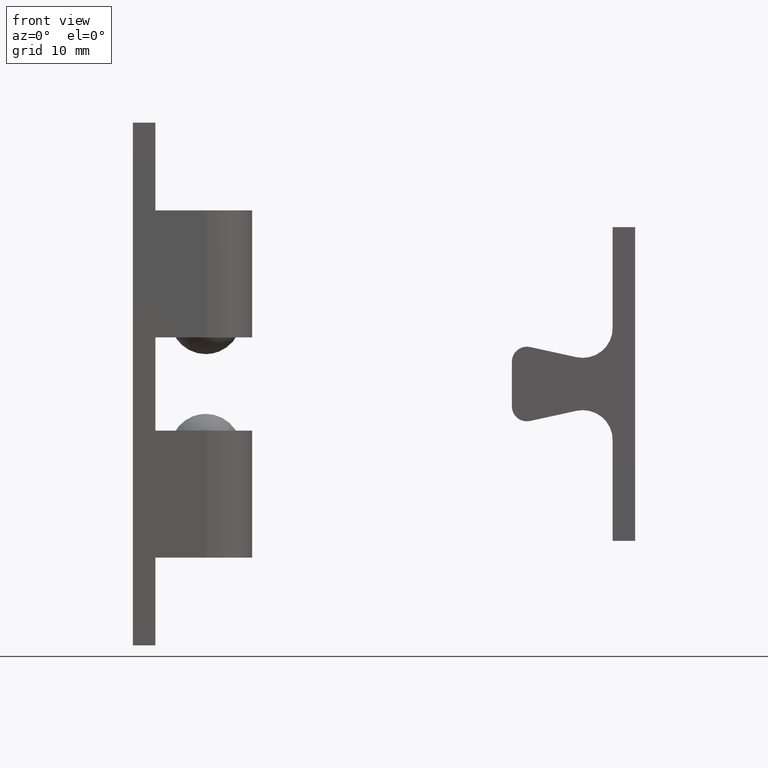
[diagram: clean part render]
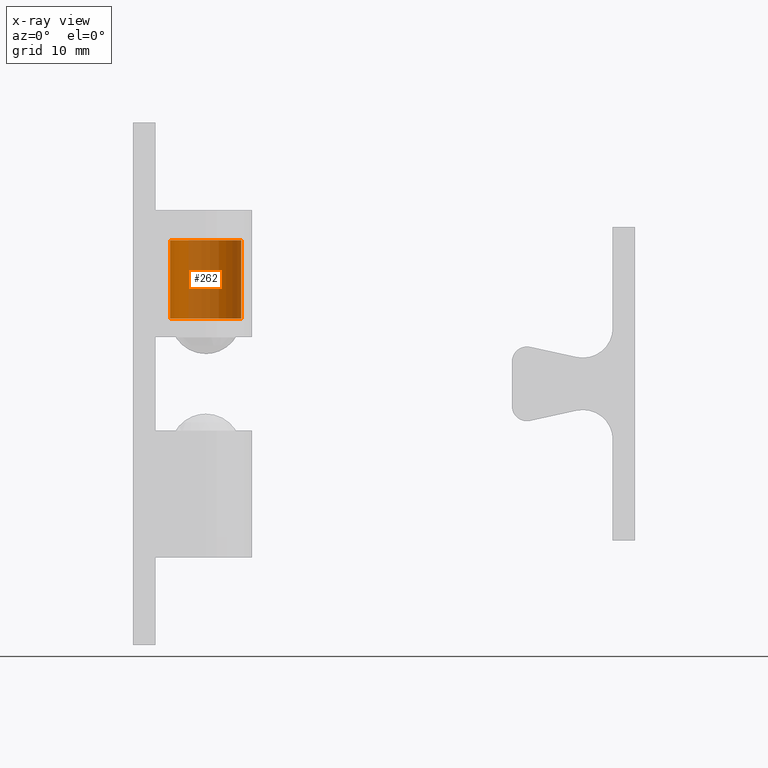
[diagram: x-ray — body ghosted, one internal face saturated and labeled with its STEP entity id]
A machine part, front view, then the same camera in x-ray: the body is ghosted and one INTERNAL B-rep face — a face not visible from any outside direction — is saturated and labeled: STEP entity #262.
In plain terms, the highlighted cylindrical surface (edge-blend (fillet) strip) has radius 4.7625 mm, axis along (0, 0, 1).
Its self-contained STEP definition (entity closure, byte-faithful):
#262=ADVANCED_FACE('',(#871),#870,.F.);
#870=CYLINDRICAL_SURFACE('',#1385,4.76250000000E+00);
#871=FACE_OUTER_BOUND('',#1386,.T.);
#1382=CARTESIAN_POINT('',(9.75000000000E+00,0.00000000000E+00,0.00000000000E+00));
#1383=DIRECTION('',(-0.00000000000E+00,-0.00000000000E+00,1.00000000000E+00));
#1384=DIRECTION('',(1.00000000000E+00,-0.00000000000E+00,-0.00000000000E+00));
#1385=AXIS2_PLACEMENT_3D('',#1382,#1383,#1384);
#1386=EDGE_LOOP('',(#1756,#1757,#1758,#1759));
#1756=ORIENTED_EDGE('',*,*,#1968,.T.);
#1757=ORIENTED_EDGE('',*,*,#1969,.T.);
#1758=ORIENTED_EDGE('',*,*,#1942,.F.);
#1759=ORIENTED_EDGE('',*,*,#1970,.F.);
#1942=EDGE_CURVE('',#2856,#2857,#2858,.T.);
#1968=EDGE_CURVE('',#3030,#3031,#3032,.T.);
#1969=EDGE_CURVE('',#3031,#2857,#3038,.T.);
#1970=EDGE_CURVE('',#3030,#2856,#3044,.T.);
#2856=VERTEX_POINT('',#3663);
#2857=VERTEX_POINT('',#3664);
#2858=CIRCLE('',#3668,4.76250000000E+00);
#3030=VERTEX_POINT('',#3773);
#3031=VERTEX_POINT('',#3774);
#3032=CIRCLE('',#3778,4.76250000000E+00);
#3038=(BOUNDED_CURVE() B_SPLINE_CURVE(1,(#3779,#3780),.UNSPECIFIED.,.F.,.F.) B_SPLINE_CURVE_WITH_KNOTS((2,2),(8.33333343261E-02,9.16666667006E-01),.UNSPECIFIED.) CURVE() GEOMETRIC_REPRESENTATION_ITEM() RATIONAL_B_SPLINE_CURVE((1.00000000000E+00,1.00000000000E+00)) REPRESENTATION_ITEM('') );
#3044=(BOUNDED_CURVE() B_SPLINE_CURVE(1,(#3781,#3782),.UNSPECIFIED.,.F.,.F.) B_SPLINE_CURVE_WITH_KNOTS((2,2),(8.33333333333E-02,9.16666666667E-01),.UNSPECIFIED.) CURVE() GEOMETRIC_REPRESENTATION_ITEM() RATIONAL_B_SPLINE_CURVE((7.50000000000E-01,7.50000000000E-01)) REPRESENTATION_ITEM('') );
#3663=CARTESIAN_POINT('',(4.98750000000E+00,0.00000000000E+00,1.92499000000E+01));
#3664=CARTESIAN_POINT('',(1.45125000000E+01,2.96059473233E-16,1.92499000000E+01));
#3665=CARTESIAN_POINT('',(9.75000000000E+00,0.00000000000E+00,1.92499000000E+01));
#3666=DIRECTION('',(-0.00000000000E+00,0.00000000000E+00,-1.00000000000E+00));
#3667=DIRECTION('',(-1.00000000000E+00,-1.22460635382E-16,0.00000000000E+00));
#3668=AXIS2_PLACEMENT_3D('',#3665,#3666,#3667);
#3773=CARTESIAN_POINT('',(4.98750000000E+00,0.00000000000E+00,8.76250000000E+00));
#3774=CARTESIAN_POINT('',(1.45125000000E+01,2.96059473233E-16,8.76250000000E+00));
#3775=CARTESIAN_POINT('',(9.75000000000E+00,0.00000000000E+00,8.76250000000E+00));
#3776=DIRECTION('',(-0.00000000000E+00,0.00000000000E+00,-1.00000000000E+00));
#3777=DIRECTION('',(-1.00000000000E+00,-1.22460635382E-16,0.00000000000E+00));
#3778=AXIS2_PLACEMENT_3D('',#3775,#3776,#3777);
#3779=CARTESIAN_POINT('',(1.45125000000E+01,0.00000000000E+00,8.76250001249E+00));
#3780=CARTESIAN_POINT('',(1.45125000000E+01,0.00000000000E+00,1.92499000043E+01));
#3781=CARTESIAN_POINT('',(4.98750000000E+00,-2.96059473233E-16,8.76250000000E+00));
#3782=CARTESIAN_POINT('',(4.98750000000E+00,-2.96059473233E-16,1.92499000000E+01));